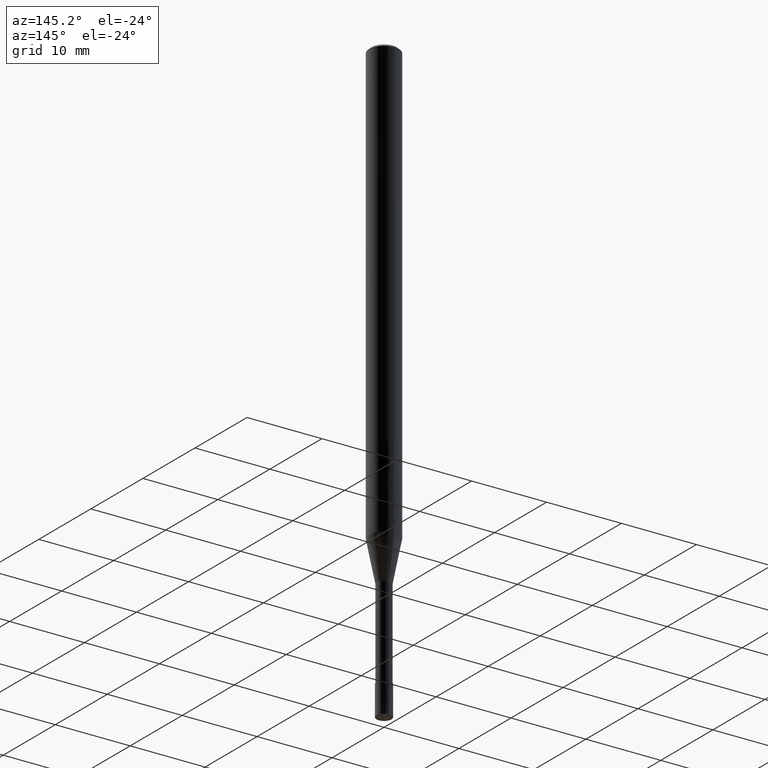
[diagram: clean part render]
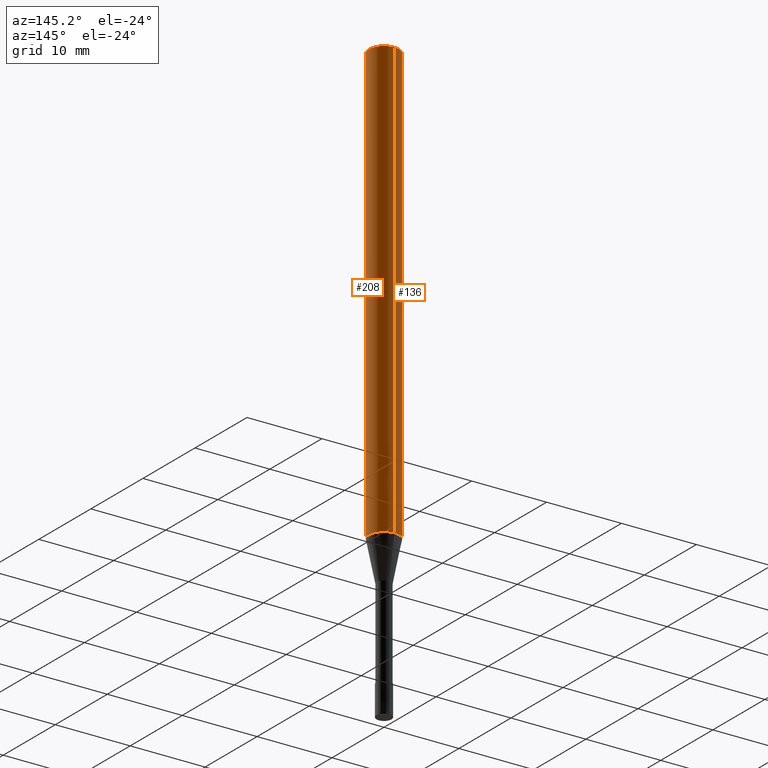
[diagram: same view with one multi-face feature highlighted, each face labeled with its STEP entity id]
A machine part, auxiliary view. The highlighted faces form ONE feature: a constant-radius fillet chain: 2 tangent blend faces with common blend radius 2 mm. The faces share edges in the B-rep.
Their STEP definitions:
[1] entity #136 (Cylinder):
#92=EDGE_CURVE('',#100,#174,#229,.T.);
#100=VERTEX_POINT('',#239);
#112=EDGE_CURVE('',#100,#128,#254,.T.);
#128=VERTEX_POINT('',#273);
#132=VERTEX_POINT('',#277);
#136=ADVANCED_FACE('',(#281),#282,.T.);
#172=EDGE_CURVE('',#132,#174,#321,.T.);
#174=VERTEX_POINT('',#323);
#206=EDGE_CURVE('',#128,#132,#358,.T.);
#229=CIRCLE('',#375,2.0);
#239=CARTESIAN_POINT('',(2.44921270764475E-016,-2.0,-58.598));
#254=LINE('',#403,#404);
#273=CARTESIAN_POINT('',(2.44921270764475E-016,-2.0,-0.299999999999997));
#277=CARTESIAN_POINT('',(0.0,2.0,-0.299999999999997));
#281=FACE_OUTER_BOUND('',#438,.T.);
#282=CYLINDRICAL_SURFACE('',#439,2.0);
#321=LINE('',#492,#493);
#323=CARTESIAN_POINT('',(0.0,2.0,-58.598));
#358=CIRCLE('',#537,2.0);
#375=AXIS2_PLACEMENT_3D('',#542,#543,#544);
#403=CARTESIAN_POINT('',(2.44921270764475E-016,-2.0,-29.449));
#404=VECTOR('',#585,1.0);
#438=EDGE_LOOP('',(#615,#616,#617,#618));
#439=AXIS2_PLACEMENT_3D('',#619,#620,#621);
#492=CARTESIAN_POINT('',(-2.44921270764475E-016,2.0,-29.449));
#493=VECTOR('',#667,1.0);
#537=AXIS2_PLACEMENT_3D('',#703,#704,#705);
#542=CARTESIAN_POINT('',(0.0,0.0,-58.598));
#543=DIRECTION('',(0.0,0.0,-1.0));
#544=DIRECTION('',(0.0,1.0,0.0));
#585=DIRECTION('',(-0.0,-0.0,1.0));
#615=ORIENTED_EDGE('',*,*,#172,.T.);
#616=ORIENTED_EDGE('',*,*,#92,.F.);
#617=ORIENTED_EDGE('',*,*,#112,.T.);
#618=ORIENTED_EDGE('',*,*,#206,.T.);
#619=CARTESIAN_POINT('',(0.0,0.0,-29.449));
#620=DIRECTION('',(-0.0,-0.0,1.0));
#621=DIRECTION('',(0.0,1.0,0.0));
#667=DIRECTION('',(0.0,0.0,-1.0));
#703=CARTESIAN_POINT('',(0.0,0.0,-0.299999999999997));
#704=DIRECTION('',(0.0,0.0,-1.0));
#705=DIRECTION('',(0.0,1.0,0.0));
[2] entity #208 (Cylinder):
#100=VERTEX_POINT('',#239);
#112=EDGE_CURVE('',#100,#128,#254,.T.);
#128=VERTEX_POINT('',#273);
#132=VERTEX_POINT('',#277);
#148=EDGE_CURVE('',#174,#100,#296,.T.);
#156=EDGE_CURVE('',#132,#128,#305,.T.);
#172=EDGE_CURVE('',#132,#174,#321,.T.);
#174=VERTEX_POINT('',#323);
#208=ADVANCED_FACE('',(#360),#361,.T.);
#239=CARTESIAN_POINT('',(2.44921270764475E-016,-2.0,-58.598));
#254=LINE('',#403,#404);
#273=CARTESIAN_POINT('',(2.44921270764475E-016,-2.0,-0.299999999999997));
#277=CARTESIAN_POINT('',(0.0,2.0,-0.299999999999997));
#296=CIRCLE('',#458,2.0);
#305=CIRCLE('',#470,2.0);
#321=LINE('',#492,#493);
#323=CARTESIAN_POINT('',(0.0,2.0,-58.598));
#360=FACE_OUTER_BOUND('',#539,.T.);
#361=CYLINDRICAL_SURFACE('',#540,2.0);
#403=CARTESIAN_POINT('',(2.44921270764475E-016,-2.0,-29.449));
#404=VECTOR('',#585,1.0);
#458=AXIS2_PLACEMENT_3D('',#638,#639,#640);
#470=AXIS2_PLACEMENT_3D('',#655,#656,#657);
#492=CARTESIAN_POINT('',(-2.44921270764475E-016,2.0,-29.449));
#493=VECTOR('',#667,1.0);
#539=EDGE_LOOP('',(#707,#708,#709,#710));
#540=AXIS2_PLACEMENT_3D('',#711,#712,#713);
#585=DIRECTION('',(-0.0,-0.0,1.0));
#638=CARTESIAN_POINT('',(0.0,0.0,-58.598));
#639=DIRECTION('',(0.0,0.0,-1.0));
#640=DIRECTION('',(0.0,1.0,0.0));
#655=CARTESIAN_POINT('',(0.0,0.0,-0.299999999999997));
#656=DIRECTION('',(0.0,0.0,-1.0));
#657=DIRECTION('',(0.0,1.0,0.0));
#667=DIRECTION('',(0.0,0.0,-1.0));
#707=ORIENTED_EDGE('',*,*,#172,.F.);
#708=ORIENTED_EDGE('',*,*,#156,.T.);
#709=ORIENTED_EDGE('',*,*,#112,.F.);
#710=ORIENTED_EDGE('',*,*,#148,.F.);
#711=CARTESIAN_POINT('',(0.0,0.0,-29.449));
#712=DIRECTION('',(-0.0,-0.0,1.0));
#713=DIRECTION('',(0.0,1.0,0.0));